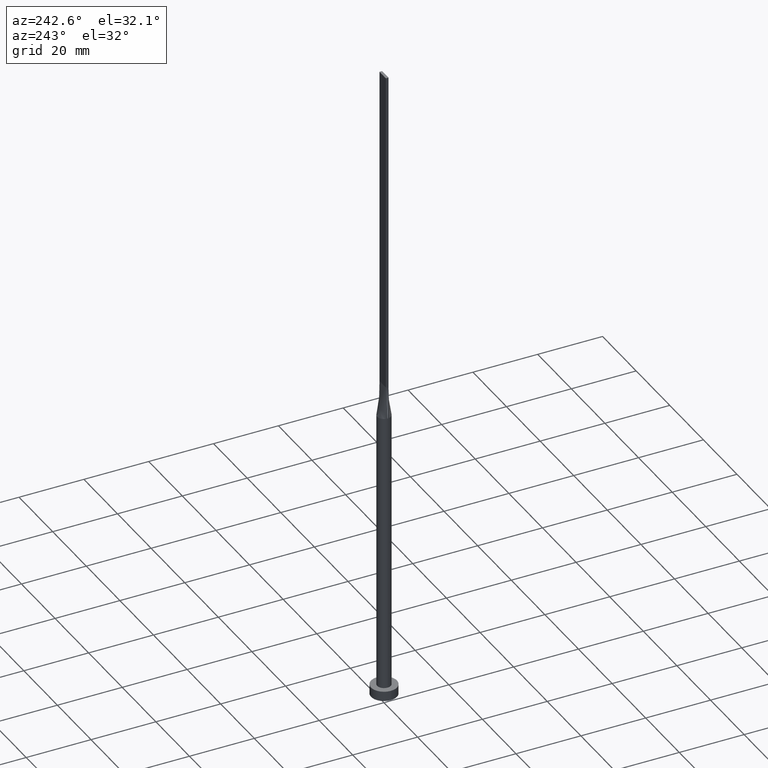
[diagram: clean part render]
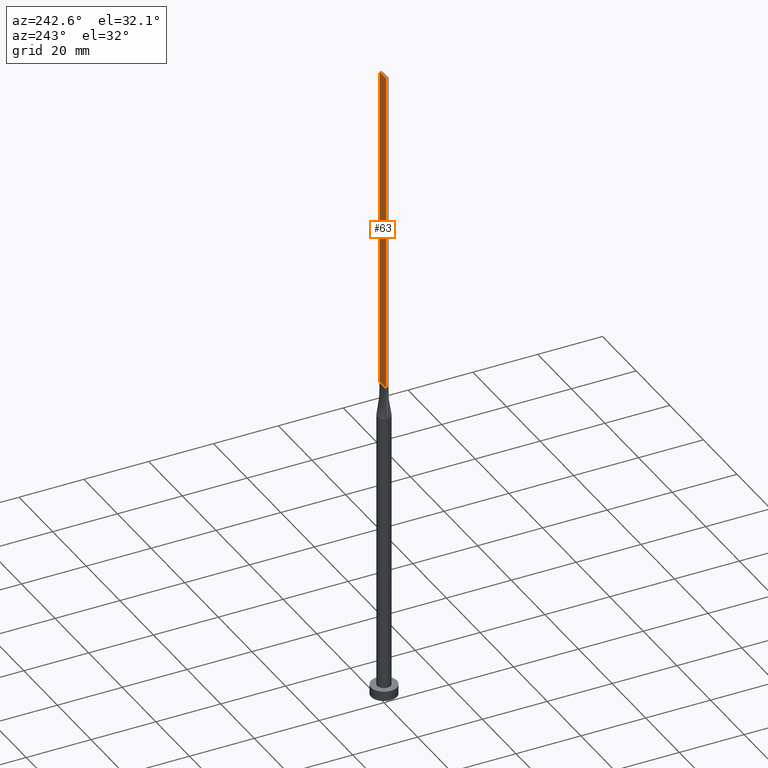
[diagram: same view with one face highlighted and labeled with its STEP entity id]
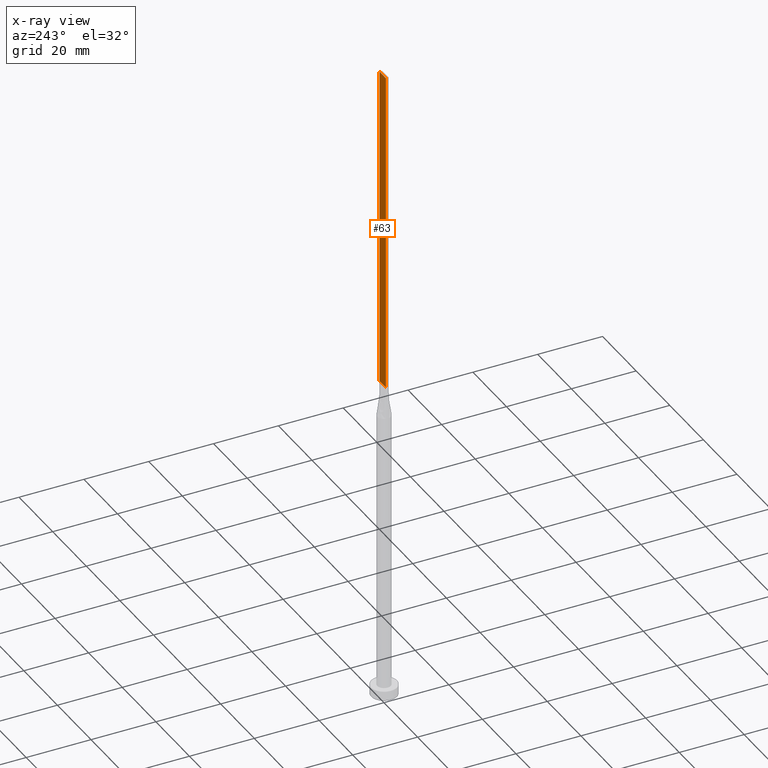
[diagram: x-ray of the same camera — body ghosted, the highlighted face saturated]
A machine part, auxiliary view. The second image highlights one B-rep face of the part: STEP entity #63.
The next image is the same camera in x-ray: the body ghosted, the highlighted face saturated — about 0% of this face is hidden behind the body in this view.
In plain terms, the highlighted planar face has unit normal (0, -1, 0).
Its self-contained STEP definition (entity closure, byte-faithful):
#40 = LINE ( 'NONE', #449, #221 ) ;
#56 = CARTESIAN_POINT ( 'NONE',  ( -1.899999999999999689, 0.4000000000000002442, 99.99999999999998579 ) ) ;
#63 = ADVANCED_FACE ( 'NONE', ( #316 ), #500, .F. ) ;
#64 = VERTEX_POINT ( 'NONE', #545 ) ;
#72 = VERTEX_POINT ( 'NONE', #505 ) ;
#80 = ORIENTED_EDGE ( 'NONE', *, *, #151, .T. ) ;
#107 = DIRECTION ( 'NONE',  ( -1.000000000000000000, 0.000000000000000000, 0.000000000000000000 ) ) ;
#134 = DIRECTION ( 'NONE',  ( -1.000000000000000000, -0.000000000000000000, -0.000000000000000000 ) ) ;
#151 = EDGE_CURVE ( 'NONE', #72, #561, #460, .T. ) ;
#189 = ORIENTED_EDGE ( 'NONE', *, *, #546, .F. ) ;
#191 = DIRECTION ( 'NONE',  ( 0.000000000000000000, -1.000000000000000000, 0.000000000000000000 ) ) ;
#197 = VECTOR ( 'NONE', #107, 1000.000000000000000 ) ;
#200 = AXIS2_PLACEMENT_3D ( 'NONE', #456, #191, #373 ) ;
#221 = VECTOR ( 'NONE', #223, 1000.000000000000000 ) ;
#223 = DIRECTION ( 'NONE',  ( -0.000000000000000000, -0.000000000000000000, -1.000000000000000000 ) ) ;
#260 = VECTOR ( 'NONE', #363, 1000.000000000000000 ) ;
#272 = CARTESIAN_POINT ( 'NONE',  ( -1.899999999999999689, 0.4000000000000002442, 200.0000000000000000 ) ) ;
#309 = CARTESIAN_POINT ( 'NONE',  ( -1.899999999999999689, 0.4000000000000002442, 99.99999999999998579 ) ) ;
#316 = FACE_OUTER_BOUND ( 'NONE', #431, .T. ) ;
#332 = VECTOR ( 'NONE', #134, 1000.000000000000000 ) ;
#335 = LINE ( 'NONE', #569, #197 ) ;
#360 = VERTEX_POINT ( 'NONE', #272 ) ;
#363 = DIRECTION ( 'NONE',  ( -0.000000000000000000, -0.000000000000000000, -1.000000000000000000 ) ) ;
#373 = DIRECTION ( 'NONE',  ( 0.000000000000000000, -0.000000000000000000, -1.000000000000000000 ) ) ;
#408 = LINE ( 'NONE', #581, #260 ) ;
#428 = EDGE_CURVE ( 'NONE', #64, #360, #335, .T. ) ;
#431 = EDGE_LOOP ( 'NONE', ( #80, #189, #479, #461 ) ) ;
#449 = CARTESIAN_POINT ( 'NONE',  ( -1.899999999999999689, 0.4000000000000002442, 200.0000000000000000 ) ) ;
#456 = CARTESIAN_POINT ( 'NONE',  ( 1.899999999999999689, 0.4000000000000002442, 200.0000000000000000 ) ) ;
#460 = LINE ( 'NONE', #56, #332 ) ;
#461 = ORIENTED_EDGE ( 'NONE', *, *, #557, .T. ) ;
#479 = ORIENTED_EDGE ( 'NONE', *, *, #428, .F. ) ;
#500 = PLANE ( 'NONE',  #200 ) ;
#505 = CARTESIAN_POINT ( 'NONE',  ( 1.899999999999999689, 0.4000000000000002442, 99.99999999999998579 ) ) ;
#545 = CARTESIAN_POINT ( 'NONE',  ( 1.899999999999999689, 0.4000000000000002442, 200.0000000000000000 ) ) ;
#546 = EDGE_CURVE ( 'NONE', #360, #561, #40, .T. ) ;
#557 = EDGE_CURVE ( 'NONE', #64, #72, #408, .T. ) ;
#561 = VERTEX_POINT ( 'NONE', #309 ) ;
#569 = CARTESIAN_POINT ( 'NONE',  ( 1.899999999999999689, 0.4000000000000002442, 200.0000000000000000 ) ) ;
#581 = CARTESIAN_POINT ( 'NONE',  ( 1.899999999999999689, 0.4000000000000002442, 200.0000000000000000 ) ) ;